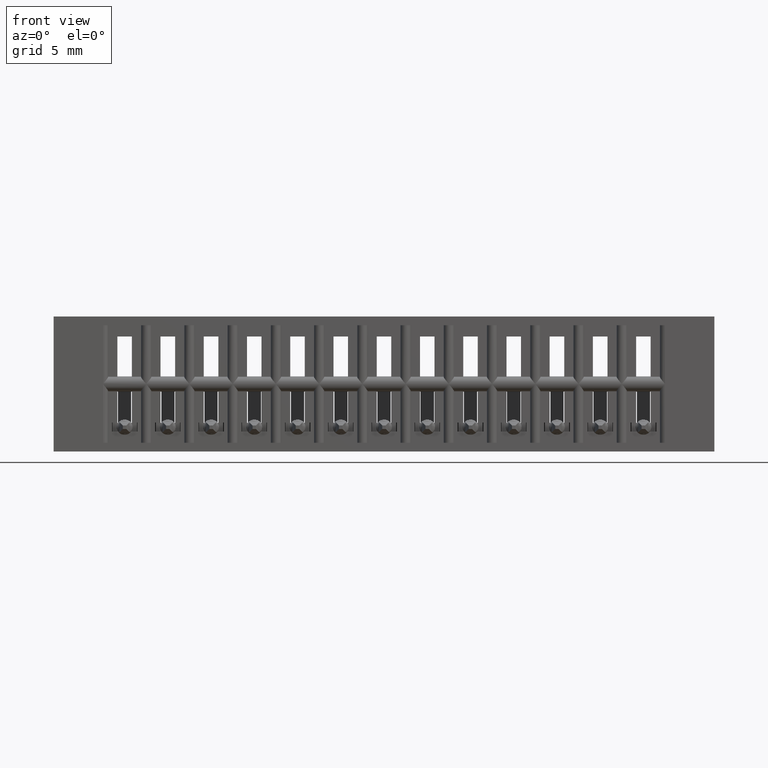
[diagram: clean part render]
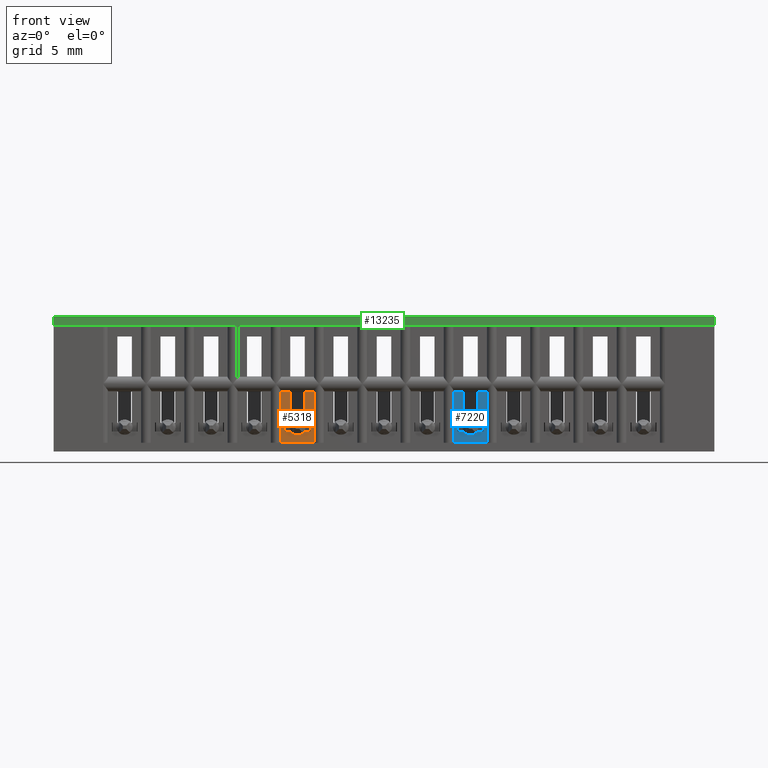
[diagram: same view with three faces highlighted in distinct colors, each labeled with its STEP entity id]
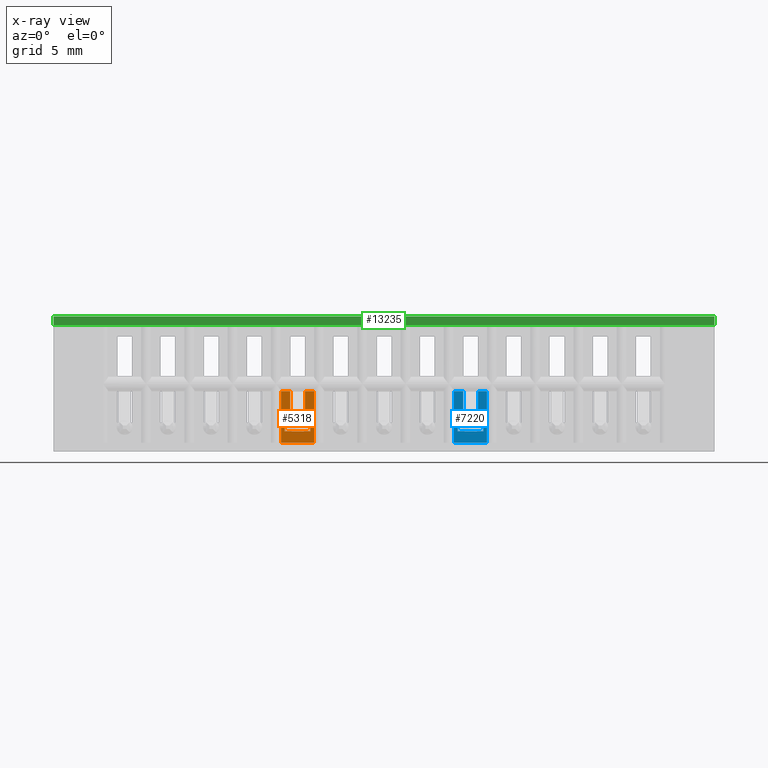
[diagram: x-ray of the same camera — body ghosted, the three highlighted faces saturated]
A machine part, front view with three faces highlighted in distinct colors.
The next image is the same camera in x-ray (body ghosted, the three faces saturated) — at least one of them is partly hidden behind the body in this view.
Their STEP definitions:

[orange] entity #5318 — the highlighted planar face has unit normal (0, 1, 0).
#90 = EDGE_CURVE ( 'NONE', #218, #4553, #12985, .T. ) ;
#217 = CARTESIAN_POINT ( 'NONE',  ( -19685.03937007874265, 0.01499999999999989536, -0.2158566536100716138 ) ) ;
#218 = VERTEX_POINT ( 'NONE', #2590 ) ;
#1125 = VECTOR ( 'NONE', #21733, 39.37007874015748143 ) ;
#1271 = VERTEX_POINT ( 'NONE', #23713 ) ;
#1606 = CARTESIAN_POINT ( 'NONE',  ( 0.6839999999999996083, 0.01499999999999994220, -0.3075000000000000511 ) ) ;
#1946 = VERTEX_POINT ( 'NONE', #6287 ) ;
#1954 = ORIENTED_EDGE ( 'NONE', *, *, #3168, .T. ) ;
#2086 = EDGE_CURVE ( 'NONE', #21212, #1271, #8703, .T. ) ;
#2344 = ORIENTED_EDGE ( 'NONE', *, *, #13306, .T. ) ;
#2494 = LINE ( 'NONE', #7706, #22014 ) ;
#2590 = CARTESIAN_POINT ( 'NONE',  ( 0.6574999999999997513, 0.01499999999999997169, -0.2158566536146137305 ) ) ;
#2791 = VECTOR ( 'NONE', #12545, 39.37007874015748143 ) ;
#2938 = CARTESIAN_POINT ( 'NONE',  ( 0.6839999999999997193, 0.01499999999999993526, -0.3075000000000000511 ) ) ;
#3168 = EDGE_CURVE ( 'NONE', #12207, #1946, #10028, .T. ) ;
#3404 = DIRECTION ( 'NONE',  ( 4.614608097405849258E-16, -4.596859604723521792E-16, 1.000000000000000000 ) ) ;
#3738 = CARTESIAN_POINT ( 'NONE',  ( 0.7419999999999996598, 0.01499999999999979475, -3.715354659355037839E-17 ) ) ;
#3867 = CARTESIAN_POINT ( 'NONE',  ( 0.6839999999994050839, 0.01499999999999997169, -0.2158566536146137582 ) ) ;
#4553 = VERTEX_POINT ( 'NONE', #3867 ) ;
#4562 = CARTESIAN_POINT ( 'NONE',  ( 0.6839999999999996083, 0.01499999999999993526, -0.3074999999999999956 ) ) ;
#4803 = EDGE_CURVE ( 'NONE', #13503, #218, #19977, .T. ) ;
#4879 = EDGE_CURVE ( 'NONE', #13503, #12207, #23699, .T. ) ;
#4928 = CARTESIAN_POINT ( 'NONE',  ( 0.6839999999999996083, 0.01499999999999996302, -0.3649999999999999911 ) ) ;
#5118 = VERTEX_POINT ( 'NONE', #12475 ) ;
#5318 = ADVANCED_FACE ( 'NONE', ( #7508 ), #20385, .F. ) ;
#5366 = VECTOR ( 'NONE', #18966, 39.37007874015748143 ) ;
#5713 = VERTEX_POINT ( 'NONE', #15784 ) ;
#5955 = VECTOR ( 'NONE', #15640, 39.37007874015748143 ) ;
#6287 = CARTESIAN_POINT ( 'NONE',  ( 0.7524999999999997247, 0.01499999999999997169, -0.2158566536146137582 ) ) ;
#6472 = ORIENTED_EDGE ( 'NONE', *, *, #22421, .T. ) ;
#6564 = EDGE_CURVE ( 'NONE', #19784, #4553, #16171, .T. ) ;
#7508 = FACE_OUTER_BOUND ( 'NONE', #20998, .T. ) ;
#7706 = CARTESIAN_POINT ( 'NONE',  ( 0.6839999999999996083, 0.01499999999999994914, -0.3325000000000000178 ) ) ;
#8029 = VERTEX_POINT ( 'NONE', #8699 ) ;
#8121 = EDGE_CURVE ( 'NONE', #5713, #5118, #16623, .T. ) ;
#8468 = DIRECTION ( 'NONE',  ( -0.0000000000000000000, -0.0000000000000000000, 1.000000000000000000 ) ) ;
#8699 = CARTESIAN_POINT ( 'NONE',  ( 0.6679999999999995941, 0.01499999999999994220, -0.3075000000000000511 ) ) ;
#8703 = LINE ( 'NONE', #17702, #2791 ) ;
#8951 = ORIENTED_EDGE ( 'NONE', *, *, #90, .F. ) ;
#9150 = CARTESIAN_POINT ( 'NONE',  ( 0.7524999999999997247, 0.01499999999999997169, -0.3649999999999999911 ) ) ;
#9315 = CARTESIAN_POINT ( 'NONE',  ( 0.6839999999999997193, 0.01499999999999979475, -3.715354659355037839E-17 ) ) ;
#10028 = LINE ( 'NONE', #21207, #22721 ) ;
#10349 = CARTESIAN_POINT ( 'NONE',  ( 0.6574999999999997513, 0.01499999999999997169, -0.3900000000000000133 ) ) ;
#10384 = DIRECTION ( 'NONE',  ( 2.385081683068867604E-16, 0.0000000000000000000, 1.000000000000000000 ) ) ;
#10461 = DIRECTION ( 'NONE',  ( -0.0000000000000000000, -0.0000000000000000000, 1.000000000000000000 ) ) ;
#10503 = CARTESIAN_POINT ( 'NONE',  ( 0.6839999999999997193, 0.01499999999999997169, -4.404883600063556642E-17 ) ) ;
#12188 = ORIENTED_EDGE ( 'NONE', *, *, #20271, .F. ) ;
#12207 = VERTEX_POINT ( 'NONE', #9150 ) ;
#12449 = VERTEX_POINT ( 'NONE', #23056 ) ;
#12475 = CARTESIAN_POINT ( 'NONE',  ( 0.7419999999999996598, 0.01499999999999994914, -0.3325000000000000178 ) ) ;
#12545 = DIRECTION ( 'NONE',  ( -2.385081683068867604E-16, 0.0000000000000000000, -1.000000000000000000 ) ) ;
#12567 = LINE ( 'NONE', #19903, #20569 ) ;
#12588 = VECTOR ( 'NONE', #18422, 39.37007874015748143 ) ;
#12985 = LINE ( 'NONE', #217, #19870 ) ;
#13306 = EDGE_CURVE ( 'NONE', #1946, #21212, #21855, .T. ) ;
#13375 = CARTESIAN_POINT ( 'NONE',  ( 0.7259999999999997566, 0.01499999999999997169, -0.2158566536146137582 ) ) ;
#13503 = VERTEX_POINT ( 'NONE', #20992 ) ;
#13638 = AXIS2_PLACEMENT_3D ( 'NONE', #9315, #18445, #16412 ) ;
#14143 = ORIENTED_EDGE ( 'NONE', *, *, #6564, .T. ) ;
#14405 = CARTESIAN_POINT ( 'NONE',  ( 19685.03937007874265, 0.01499999999999989536, -0.2158566536191554863 ) ) ;
#15012 = VECTOR ( 'NONE', #10461, 39.37007874015748143 ) ;
#15473 = ORIENTED_EDGE ( 'NONE', *, *, #4803, .F. ) ;
#15640 = DIRECTION ( 'NONE',  ( 1.000000000000000000, 6.287160262869416356E-33, -2.444074818391192251E-16 ) ) ;
#15784 = CARTESIAN_POINT ( 'NONE',  ( 0.7419999999999996598, 0.01499999999999994220, -0.3075000000000000511 ) ) ;
#16092 = EDGE_CURVE ( 'NONE', #19784, #8029, #19436, .T. ) ;
#16171 = LINE ( 'NONE', #10503, #19061 ) ;
#16300 = ORIENTED_EDGE ( 'NONE', *, *, #2086, .T. ) ;
#16412 = DIRECTION ( 'NONE',  ( 0.0000000000000000000, -4.596859604723521792E-16, 1.000000000000000000 ) ) ;
#16623 = LINE ( 'NONE', #3738, #12588 ) ;
#16850 = DIRECTION ( 'NONE',  ( 1.000000000000000000, -0.0000000000000000000, -2.307304048702925122E-16 ) ) ;
#17626 = ORIENTED_EDGE ( 'NONE', *, *, #4879, .T. ) ;
#17702 = CARTESIAN_POINT ( 'NONE',  ( 0.7259999999999997566, 0.01499999999999997169, -5.373951300518784932E-17 ) ) ;
#17797 = DIRECTION ( 'NONE',  ( 1.000000000000000000, -0.0000000000000000000, -2.307304048702925122E-16 ) ) ;
#18194 = ORIENTED_EDGE ( 'NONE', *, *, #22530, .T. ) ;
#18385 = DIRECTION ( 'NONE',  ( 1.000000000000000000, 0.0000000000000000000, -2.307304048702924629E-16 ) ) ;
#18422 = DIRECTION ( 'NONE',  ( -0.0000000000000000000, 4.596859604723521792E-16, -1.000000000000000000 ) ) ;
#18445 = DIRECTION ( 'NONE',  ( 1.060635277729750645E-31, 1.000000000000000000, 4.596859604723521792E-16 ) ) ;
#18520 = ORIENTED_EDGE ( 'NONE', *, *, #16092, .F. ) ;
#18966 = DIRECTION ( 'NONE',  ( -1.000000000000000000, 6.287160262869394461E-33, 2.170533279014657500E-16 ) ) ;
#19061 = VECTOR ( 'NONE', #10384, 39.37007874015748143 ) ;
#19193 = VECTOR ( 'NONE', #17797, 39.37007874015748143 ) ;
#19436 = LINE ( 'NONE', #2938, #5366 ) ;
#19784 = VERTEX_POINT ( 'NONE', #1606 ) ;
#19870 = VECTOR ( 'NONE', #18385, 39.37007874015748143 ) ;
#19903 = CARTESIAN_POINT ( 'NONE',  ( 0.6679999999999997051, 0.01499999999999979475, -2.977017363770099769E-17 ) ) ;
#19977 = LINE ( 'NONE', #10349, #15012 ) ;
#20271 = EDGE_CURVE ( 'NONE', #12449, #5118, #2494, .T. ) ;
#20385 = PLANE ( 'NONE',  #13638 ) ;
#20569 = VECTOR ( 'NONE', #3404, 39.37007874015748143 ) ;
#20992 = CARTESIAN_POINT ( 'NONE',  ( 0.6574999999999997513, 0.01499999999999997169, -0.3649999999999999911 ) ) ;
#20998 = EDGE_LOOP ( 'NONE', ( #1954, #2344, #16300, #18194, #21006, #12188, #6472, #18520, #14143, #8951, #15473, #17626 ) ) ;
#21006 = ORIENTED_EDGE ( 'NONE', *, *, #8121, .T. ) ;
#21207 = CARTESIAN_POINT ( 'NONE',  ( 0.7524999999999997247, 0.01499999999999997169, -0.3900000000000000133 ) ) ;
#21212 = VERTEX_POINT ( 'NONE', #13375 ) ;
#21285 = LINE ( 'NONE', #4562, #5955 ) ;
#21733 = DIRECTION ( 'NONE',  ( -1.000000000000000000, -0.0000000000000000000, 2.307304048702924629E-16 ) ) ;
#21855 = LINE ( 'NONE', #14405, #1125 ) ;
#22014 = VECTOR ( 'NONE', #16850, 39.37007874015748143 ) ;
#22421 = EDGE_CURVE ( 'NONE', #12449, #8029, #12567, .T. ) ;
#22530 = EDGE_CURVE ( 'NONE', #1271, #5713, #21285, .T. ) ;
#22721 = VECTOR ( 'NONE', #8468, 39.37007874015748143 ) ;
#23056 = CARTESIAN_POINT ( 'NONE',  ( 0.6679999999999995941, 0.01499999999999993873, -0.3324999999999999623 ) ) ;
#23699 = LINE ( 'NONE', #4928, #19193 ) ;
#23713 = CARTESIAN_POINT ( 'NONE',  ( 0.7259999999999995346, 0.01499999999999994220, -0.3075000000000000511 ) ) ;

[blue] entity #7220 — the highlighted planar face has unit normal (0, 1, 0).
#511 = CARTESIAN_POINT ( 'NONE',  ( 1.252499999999999503, 0.01499999999999997169, -0.2158566536146137582 ) ) ;
#762 = CARTESIAN_POINT ( 'NONE',  ( 19685.03937007874265, 0.01499999999999989536, -0.2158566536191554031 ) ) ;
#863 = CARTESIAN_POINT ( 'NONE',  ( 1.167999999999999705, 0.01499999999999979475, -2.977017363770106548E-17 ) ) ;
#1109 = LINE ( 'NONE', #863, #19352 ) ;
#1319 = EDGE_CURVE ( 'NONE', #22818, #11048, #9174, .T. ) ;
#2407 = VERTEX_POINT ( 'NONE', #21526 ) ;
#2464 = LINE ( 'NONE', #13209, #22748 ) ;
#2510 = FACE_OUTER_BOUND ( 'NONE', #8918, .T. ) ;
#2684 = CARTESIAN_POINT ( 'NONE',  ( 1.167999999999999705, 0.01499999999999994220, -0.3075000000000000511 ) ) ;
#2766 = DIRECTION ( 'NONE',  ( 4.614608097405849258E-16, -4.596859604723521792E-16, 1.000000000000000000 ) ) ;
#2801 = ORIENTED_EDGE ( 'NONE', *, *, #16610, .T. ) ;
#2875 = CARTESIAN_POINT ( 'NONE',  ( 1.157499999999999751, 0.01499999999999997169, -0.3900000000000000133 ) ) ;
#3605 = LINE ( 'NONE', #10825, #16270 ) ;
#3713 = VERTEX_POINT ( 'NONE', #21531 ) ;
#3717 = CARTESIAN_POINT ( 'NONE',  ( 1.157499999999999751, 0.01499999999999997169, -0.3649999999999999911 ) ) ;
#3936 = CARTESIAN_POINT ( 'NONE',  ( 1.183999999999999719, 0.01499999999999994220, -0.3075000000000000511 ) ) ;
#4015 = CARTESIAN_POINT ( 'NONE',  ( 1.157499999999999751, 0.01499999999999997169, -0.2158566536146137582 ) ) ;
#4972 = ORIENTED_EDGE ( 'NONE', *, *, #10767, .T. ) ;
#5425 = ORIENTED_EDGE ( 'NONE', *, *, #1319, .F. ) ;
#5542 = LINE ( 'NONE', #12897, #23624 ) ;
#5647 = VECTOR ( 'NONE', #21912, 39.37007874015748143 ) ;
#5862 = ORIENTED_EDGE ( 'NONE', *, *, #19419, .T. ) ;
#5897 = ORIENTED_EDGE ( 'NONE', *, *, #6517, .F. ) ;
#6193 = VECTOR ( 'NONE', #22044, 39.37007874015748143 ) ;
#6250 = DIRECTION ( 'NONE',  ( 0.0000000000000000000, -4.596859604723521792E-16, 1.000000000000000000 ) ) ;
#6517 = EDGE_CURVE ( 'NONE', #16106, #22749, #23615, .T. ) ;
#6827 = VECTOR ( 'NONE', #17015, 39.37007874015748143 ) ;
#7220 = ADVANCED_FACE ( 'NONE', ( #2510 ), #13854, .F. ) ;
#7691 = CARTESIAN_POINT ( 'NONE',  ( 1.241999999999999549, 0.01499999999999994914, -0.3325000000000000178 ) ) ;
#7827 = CARTESIAN_POINT ( 'NONE',  ( 1.241999999999999549, 0.01499999999999979475, -3.715354659355037839E-17 ) ) ;
#7920 = LINE ( 'NONE', #17186, #10568 ) ;
#8441 = LINE ( 'NONE', #2875, #20861 ) ;
#8721 = CARTESIAN_POINT ( 'NONE',  ( 1.183999999999999497, 0.01499999999999994914, -0.3325000000000000178 ) ) ;
#8918 = EDGE_LOOP ( 'NONE', ( #13317, #17557, #5862, #2801, #4972, #5897, #11554, #5425, #17182, #10043, #9169, #20989 ) ) ;
#9169 = ORIENTED_EDGE ( 'NONE', *, *, #18854, .F. ) ;
#9174 = LINE ( 'NONE', #14222, #5647 ) ;
#9191 = LINE ( 'NONE', #16758, #6193 ) ;
#9708 = CARTESIAN_POINT ( 'NONE',  ( 1.225999999999999757, 0.01499999999999997169, -0.2158566536146137582 ) ) ;
#10043 = ORIENTED_EDGE ( 'NONE', *, *, #11591, .F. ) ;
#10226 = AXIS2_PLACEMENT_3D ( 'NONE', #22734, #21170, #6250 ) ;
#10568 = VECTOR ( 'NONE', #21023, 39.37007874015748143 ) ;
#10596 = VECTOR ( 'NONE', #15930, 39.37007874015748143 ) ;
#10767 = EDGE_CURVE ( 'NONE', #21536, #22749, #20700, .T. ) ;
#10825 = CARTESIAN_POINT ( 'NONE',  ( 1.183999999999999497, 0.01499999999999996302, -0.3649999999999999911 ) ) ;
#10950 = DIRECTION ( 'NONE',  ( 1.000000000000000000, -0.0000000000000000000, -2.307304048702925122E-16 ) ) ;
#11048 = VERTEX_POINT ( 'NONE', #2684 ) ;
#11088 = DIRECTION ( 'NONE',  ( 2.385081683068867604E-16, 0.0000000000000000000, 1.000000000000000000 ) ) ;
#11301 = VECTOR ( 'NONE', #17315, 39.37007874015748143 ) ;
#11554 = ORIENTED_EDGE ( 'NONE', *, *, #20857, .T. ) ;
#11591 = EDGE_CURVE ( 'NONE', #16218, #19866, #17937, .T. ) ;
#11828 = EDGE_CURVE ( 'NONE', #22818, #19866, #5542, .T. ) ;
#12283 = EDGE_CURVE ( 'NONE', #2407, #20809, #7920, .T. ) ;
#12897 = CARTESIAN_POINT ( 'NONE',  ( 1.183999999999999719, 0.01499999999999997169, -4.404883600063556642E-17 ) ) ;
#13209 = CARTESIAN_POINT ( 'NONE',  ( 1.225999999999999757, 0.01499999999999997169, -5.373951300518784932E-17 ) ) ;
#13317 = ORIENTED_EDGE ( 'NONE', *, *, #12283, .T. ) ;
#13854 = PLANE ( 'NONE',  #10226 ) ;
#13926 = EDGE_CURVE ( 'NONE', #20809, #14855, #22884, .T. ) ;
#14222 = CARTESIAN_POINT ( 'NONE',  ( 1.183999999999999719, 0.01499999999999993526, -0.3075000000000000511 ) ) ;
#14855 = VERTEX_POINT ( 'NONE', #9708 ) ;
#15771 = DIRECTION ( 'NONE',  ( -0.0000000000000000000, -0.0000000000000000000, 1.000000000000000000 ) ) ;
#15930 = DIRECTION ( 'NONE',  ( 1.000000000000000000, -0.0000000000000000000, -2.307304048702925122E-16 ) ) ;
#16065 = CARTESIAN_POINT ( 'NONE',  ( 1.167999999999999705, 0.01499999999999993873, -0.3324999999999999623 ) ) ;
#16106 = VERTEX_POINT ( 'NONE', #16065 ) ;
#16218 = VERTEX_POINT ( 'NONE', #4015 ) ;
#16270 = VECTOR ( 'NONE', #10950, 39.37007874015748143 ) ;
#16610 = EDGE_CURVE ( 'NONE', #3713, #21536, #9191, .T. ) ;
#16758 = CARTESIAN_POINT ( 'NONE',  ( 1.183999999999999497, 0.01499999999999993526, -0.3074999999999999956 ) ) ;
#16822 = DIRECTION ( 'NONE',  ( -2.385081683068867604E-16, 0.0000000000000000000, -1.000000000000000000 ) ) ;
#17015 = DIRECTION ( 'NONE',  ( -1.000000000000000000, -0.0000000000000000000, 2.307304048702925122E-16 ) ) ;
#17182 = ORIENTED_EDGE ( 'NONE', *, *, #11828, .T. ) ;
#17186 = CARTESIAN_POINT ( 'NONE',  ( 1.252499999999999503, 0.01499999999999997169, -0.3900000000000000133 ) ) ;
#17315 = DIRECTION ( 'NONE',  ( -0.0000000000000000000, 4.596859604723521792E-16, -1.000000000000000000 ) ) ;
#17557 = ORIENTED_EDGE ( 'NONE', *, *, #13926, .T. ) ;
#17768 = VERTEX_POINT ( 'NONE', #3717 ) ;
#17850 = VECTOR ( 'NONE', #23110, 39.37007874015748143 ) ;
#17937 = LINE ( 'NONE', #19741, #17850 ) ;
#18854 = EDGE_CURVE ( 'NONE', #17768, #16218, #8441, .T. ) ;
#19352 = VECTOR ( 'NONE', #2766, 39.37007874015748143 ) ;
#19419 = EDGE_CURVE ( 'NONE', #14855, #3713, #2464, .T. ) ;
#19741 = CARTESIAN_POINT ( 'NONE',  ( -19685.03937007874265, 0.01499999999999989536, -0.2158566536100715305 ) ) ;
#19866 = VERTEX_POINT ( 'NONE', #22865 ) ;
#20094 = EDGE_CURVE ( 'NONE', #17768, #2407, #3605, .T. ) ;
#20700 = LINE ( 'NONE', #7827, #11301 ) ;
#20809 = VERTEX_POINT ( 'NONE', #511 ) ;
#20857 = EDGE_CURVE ( 'NONE', #16106, #11048, #1109, .T. ) ;
#20861 = VECTOR ( 'NONE', #15771, 39.37007874015748143 ) ;
#20989 = ORIENTED_EDGE ( 'NONE', *, *, #20094, .T. ) ;
#21023 = DIRECTION ( 'NONE',  ( -0.0000000000000000000, -0.0000000000000000000, 1.000000000000000000 ) ) ;
#21170 = DIRECTION ( 'NONE',  ( 1.060635277729750645E-31, 1.000000000000000000, 4.596859604723521792E-16 ) ) ;
#21526 = CARTESIAN_POINT ( 'NONE',  ( 1.252499999999999503, 0.01499999999999997169, -0.3649999999999999911 ) ) ;
#21531 = CARTESIAN_POINT ( 'NONE',  ( 1.225999999999999535, 0.01499999999999994220, -0.3075000000000000511 ) ) ;
#21536 = VERTEX_POINT ( 'NONE', #23312 ) ;
#21912 = DIRECTION ( 'NONE',  ( -1.000000000000000000, 6.287160262869394461E-33, 2.170533279014657500E-16 ) ) ;
#22044 = DIRECTION ( 'NONE',  ( 1.000000000000000000, 6.287160262869416356E-33, -2.444074818391192251E-16 ) ) ;
#22734 = CARTESIAN_POINT ( 'NONE',  ( 1.183999999999999719, 0.01499999999999979475, -3.715354659355037839E-17 ) ) ;
#22748 = VECTOR ( 'NONE', #16822, 39.37007874015748143 ) ;
#22749 = VERTEX_POINT ( 'NONE', #7691 ) ;
#22818 = VERTEX_POINT ( 'NONE', #3936 ) ;
#22865 = CARTESIAN_POINT ( 'NONE',  ( 1.183999999999219011, 0.01499999999999997169, -0.2158566536146137582 ) ) ;
#22884 = LINE ( 'NONE', #762, #6827 ) ;
#23110 = DIRECTION ( 'NONE',  ( 1.000000000000000000, 0.0000000000000000000, -2.307304048702924629E-16 ) ) ;
#23312 = CARTESIAN_POINT ( 'NONE',  ( 1.241999999999999549, 0.01499999999999994220, -0.3075000000000000511 ) ) ;
#23615 = LINE ( 'NONE', #8721, #10596 ) ;
#23624 = VECTOR ( 'NONE', #11088, 39.37007874015748143 ) ;

[green] entity #13235 — the highlighted planar face has unit normal (0, 1, 0).
#137 = DIRECTION ( 'NONE',  ( 0.0000000000000000000, 0.0000000000000000000, -1.000000000000000000 ) ) ;
#328 = ORIENTED_EDGE ( 'NONE', *, *, #11178, .F. ) ;
#573 = VERTEX_POINT ( 'NONE', #11500 ) ;
#780 = CARTESIAN_POINT ( 'NONE',  ( 1.909999999999999920, 0.1000000000000000056, -0.02500000000000000486 ) ) ;
#2546 = VERTEX_POINT ( 'NONE', #14438 ) ;
#2659 = LINE ( 'NONE', #9909, #9465 ) ;
#2720 = CARTESIAN_POINT ( 'NONE',  ( 0.0000000000000000000, 0.1000000000000000056, -0.02500000000000000486 ) ) ;
#3374 = VERTEX_POINT ( 'NONE', #20250 ) ;
#4364 = ORIENTED_EDGE ( 'NONE', *, *, #8140, .F. ) ;
#4606 = ORIENTED_EDGE ( 'NONE', *, *, #12633, .T. ) ;
#5684 = VECTOR ( 'NONE', #21943, 39.37007874015748143 ) ;
#6041 = VECTOR ( 'NONE', #137, 39.37007874015748143 ) ;
#6700 = FACE_OUTER_BOUND ( 'NONE', #14723, .T. ) ;
#7607 = LINE ( 'NONE', #11090, #6041 ) ;
#8140 = EDGE_CURVE ( 'NONE', #573, #3374, #7607, .T. ) ;
#8360 = DIRECTION ( 'NONE',  ( -1.000000000000000000, -0.0000000000000000000, -0.0000000000000000000 ) ) ;
#8529 = VERTEX_POINT ( 'NONE', #2720 ) ;
#8637 = PLANE ( 'NONE',  #11447 ) ;
#9465 = VECTOR ( 'NONE', #21195, 39.37007874015748143 ) ;
#9909 = CARTESIAN_POINT ( 'NONE',  ( 1.909999999999999920, 0.1000000000000000056, 0.0000000000000000000 ) ) ;
#10667 = DIRECTION ( 'NONE',  ( 0.0000000000000000000, -0.0000000000000000000, 1.000000000000000000 ) ) ;
#11090 = CARTESIAN_POINT ( 'NONE',  ( 1.909999999999999920, 0.1000000000000000056, 0.0000000000000000000 ) ) ;
#11178 = EDGE_CURVE ( 'NONE', #3374, #8529, #17261, .T. ) ;
#11447 = AXIS2_PLACEMENT_3D ( 'NONE', #21378, #19937, #10667 ) ;
#11500 = CARTESIAN_POINT ( 'NONE',  ( 1.909999999999999920, 0.1000000000000000056, 0.0000000000000000000 ) ) ;
#11748 = ORIENTED_EDGE ( 'NONE', *, *, #13870, .T. ) ;
#12633 = EDGE_CURVE ( 'NONE', #573, #2546, #2659, .T. ) ;
#13235 = ADVANCED_FACE ( 'NONE', ( #6700 ), #8637, .F. ) ;
#13870 = EDGE_CURVE ( 'NONE', #2546, #8529, #23620, .T. ) ;
#14438 = CARTESIAN_POINT ( 'NONE',  ( 0.0000000000000000000, 0.1000000000000000056, 0.0000000000000000000 ) ) ;
#14723 = EDGE_LOOP ( 'NONE', ( #11748, #328, #4364, #4606 ) ) ;
#17261 = LINE ( 'NONE', #780, #22468 ) ;
#19937 = DIRECTION ( 'NONE',  ( -0.0000000000000000000, 1.000000000000000000, 0.0000000000000000000 ) ) ;
#20250 = CARTESIAN_POINT ( 'NONE',  ( 1.909999999999999920, 0.1000000000000000056, -0.02500000000000000486 ) ) ;
#21195 = DIRECTION ( 'NONE',  ( -1.000000000000000000, -0.0000000000000000000, -0.0000000000000000000 ) ) ;
#21378 = CARTESIAN_POINT ( 'NONE',  ( 1.909999999999999920, 0.1000000000000000056, 0.0000000000000000000 ) ) ;
#21943 = DIRECTION ( 'NONE',  ( 0.0000000000000000000, 0.0000000000000000000, -1.000000000000000000 ) ) ;
#22468 = VECTOR ( 'NONE', #8360, 39.37007874015748143 ) ;
#23620 = LINE ( 'NONE', #23751, #5684 ) ;
#23751 = CARTESIAN_POINT ( 'NONE',  ( 0.0000000000000000000, 0.1000000000000000056, 0.0000000000000000000 ) ) ;